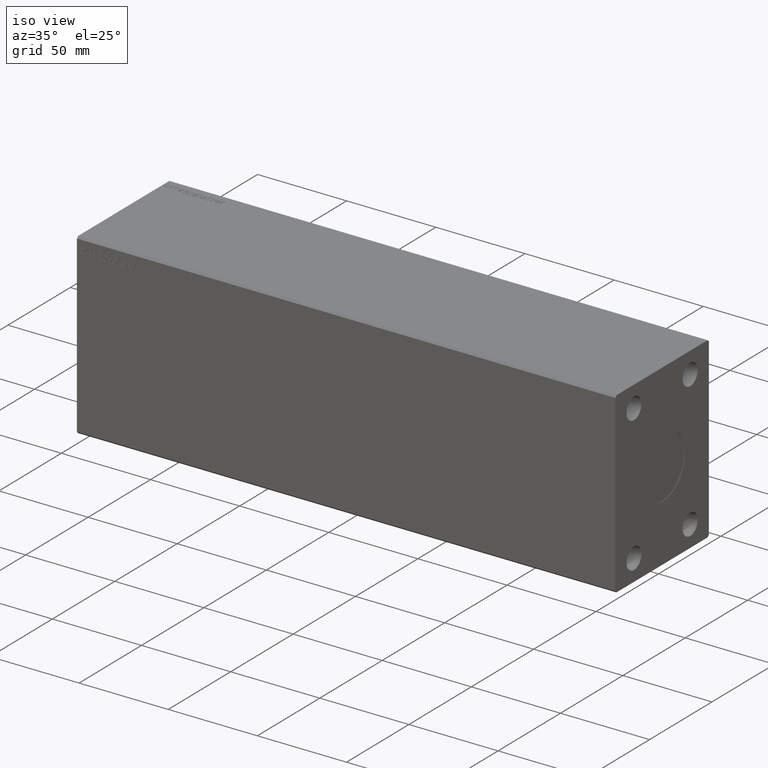
[diagram: clean part render]
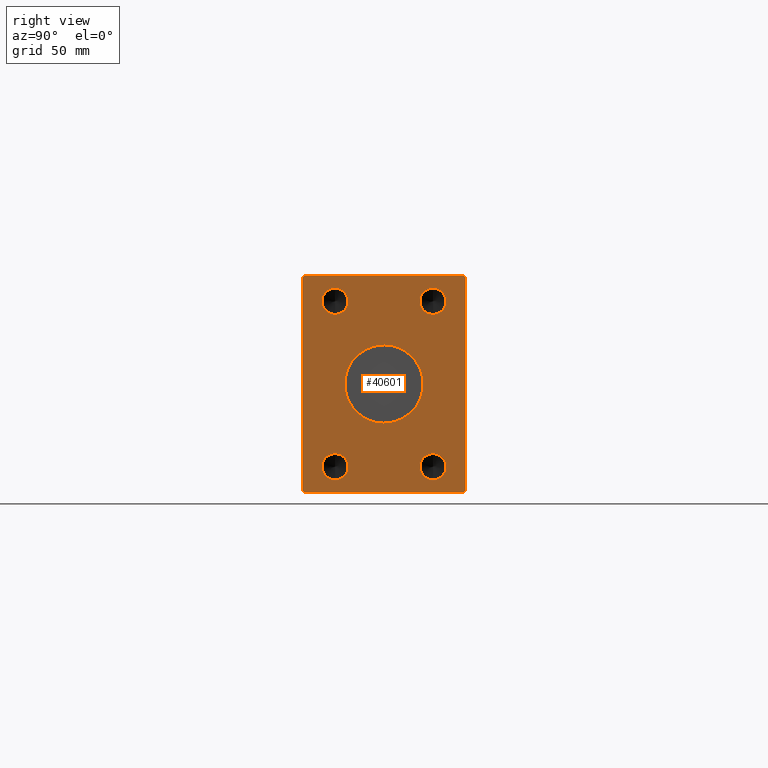
[diagram: tour spotlight — one face highlighted and labeled with its STEP entity id]
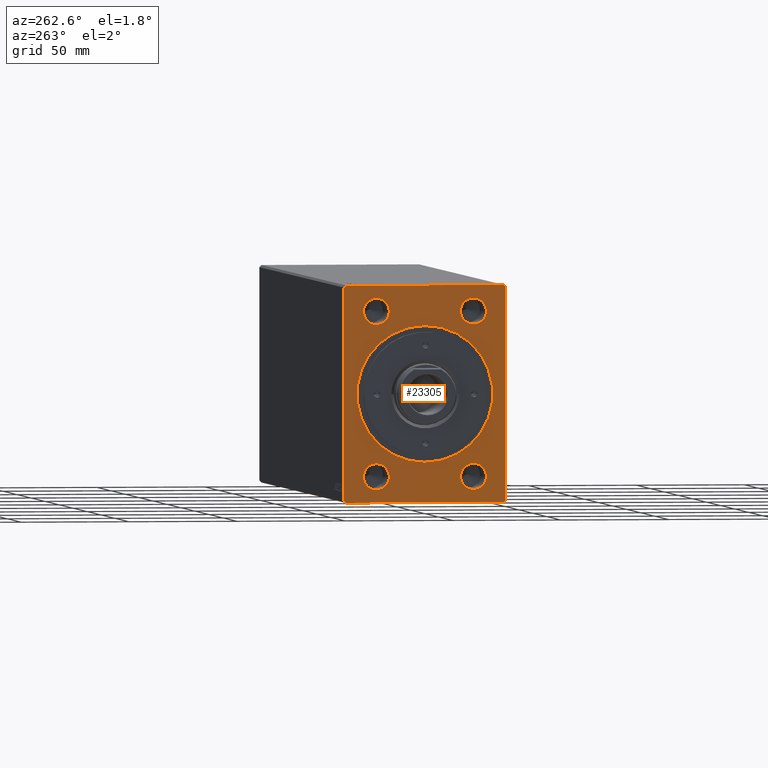
[diagram: tour spotlight — one face highlighted and labeled with its STEP entity id]
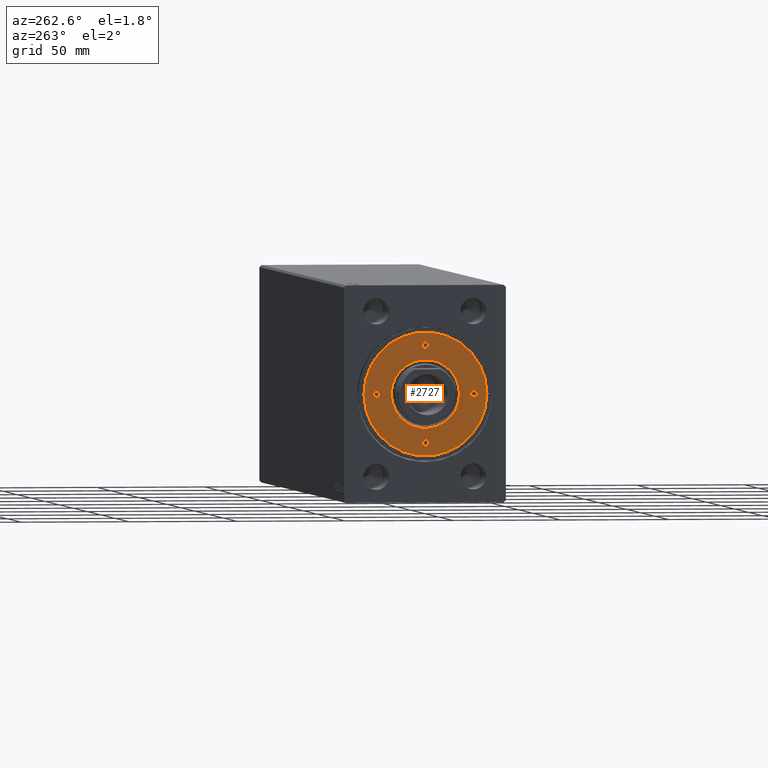
[diagram: tour spotlight — one face highlighted and labeled with its STEP entity id]
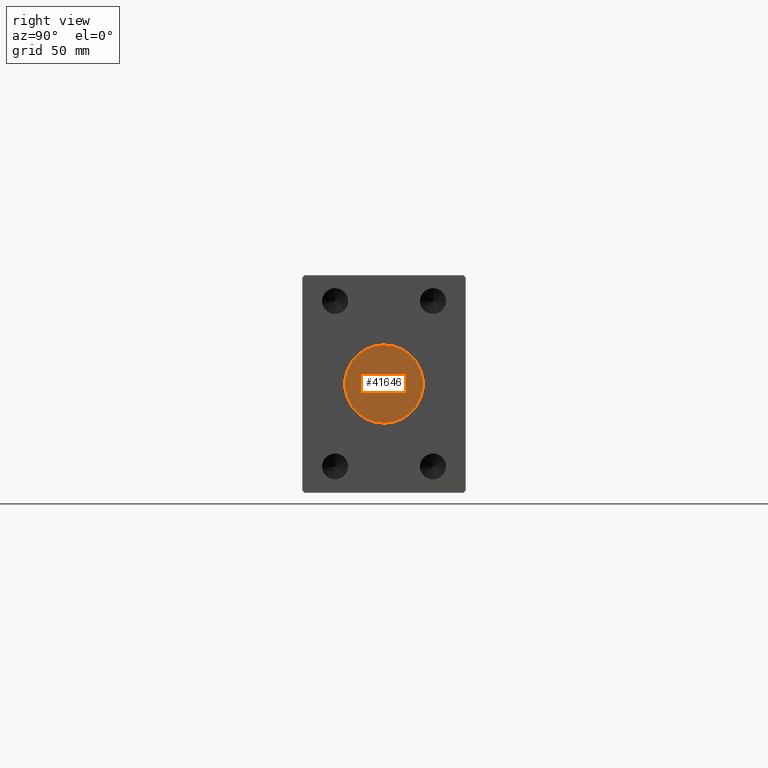
[diagram: tour spotlight — one face highlighted and labeled with its STEP entity id]
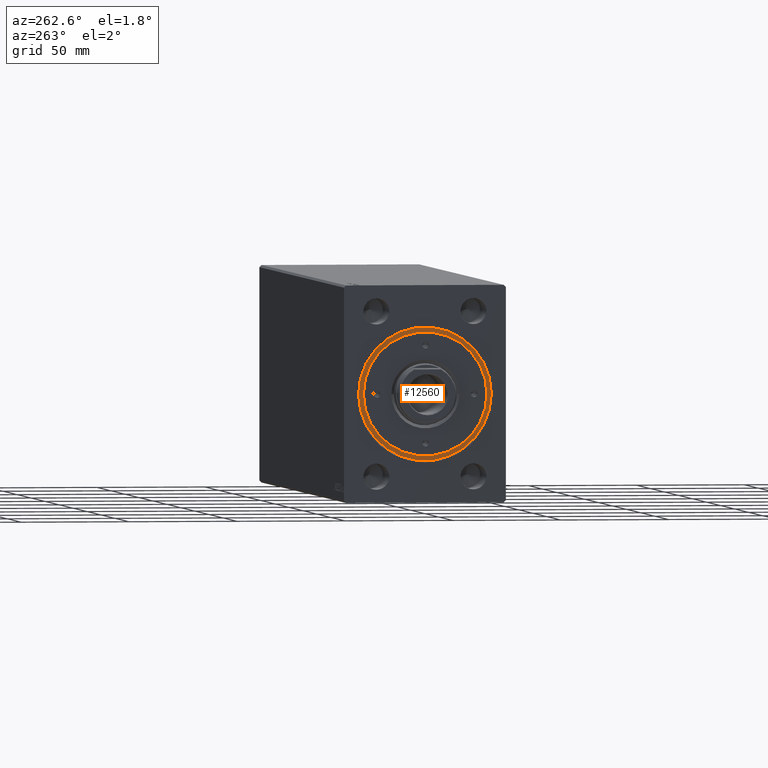
[diagram: tour spotlight — one face highlighted and labeled with its STEP entity id]
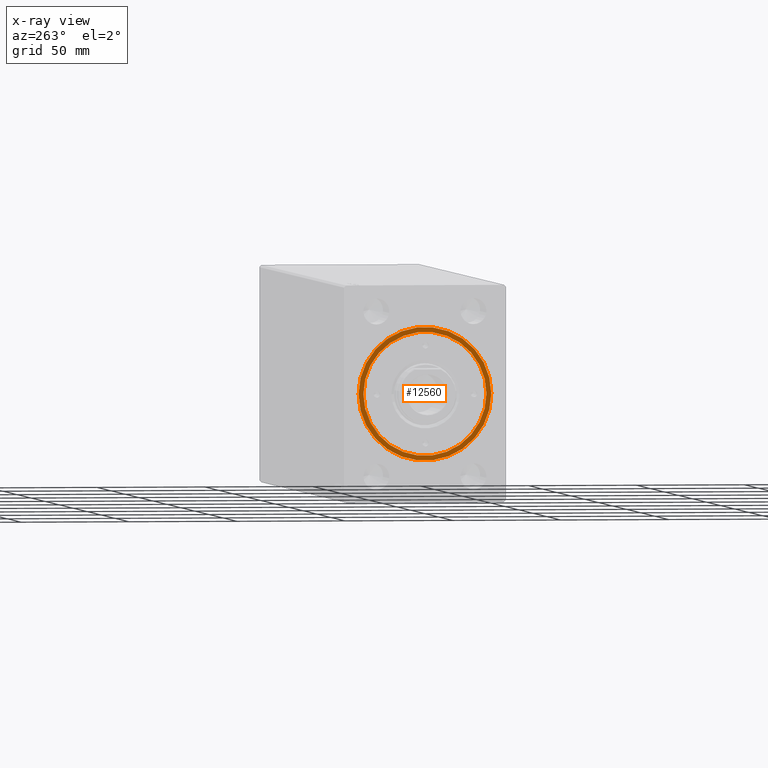
[diagram: x-ray of the same camera — body ghosted, this tour face saturated]
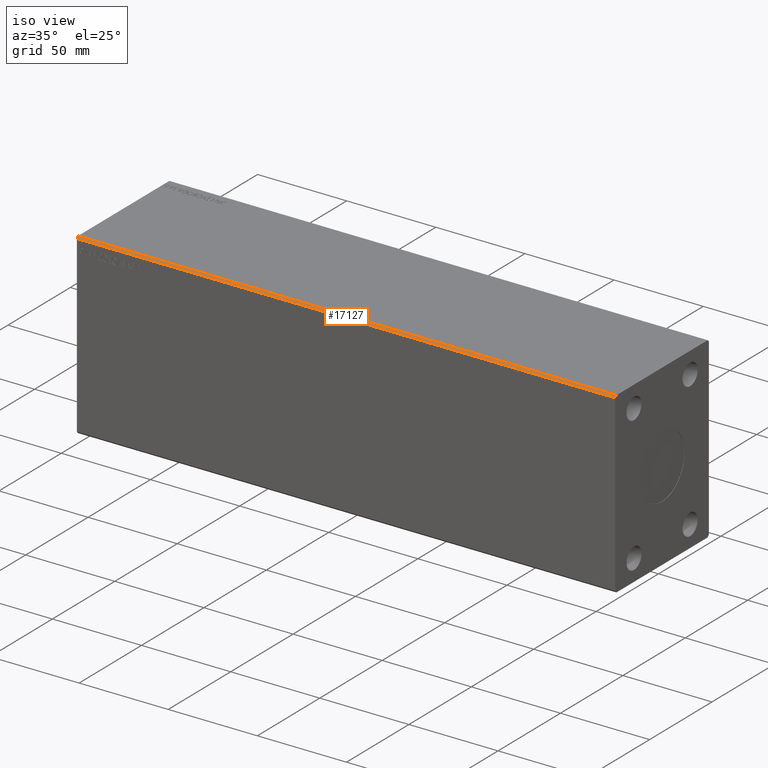
[diagram: tour spotlight — one face highlighted and labeled with its STEP entity id]
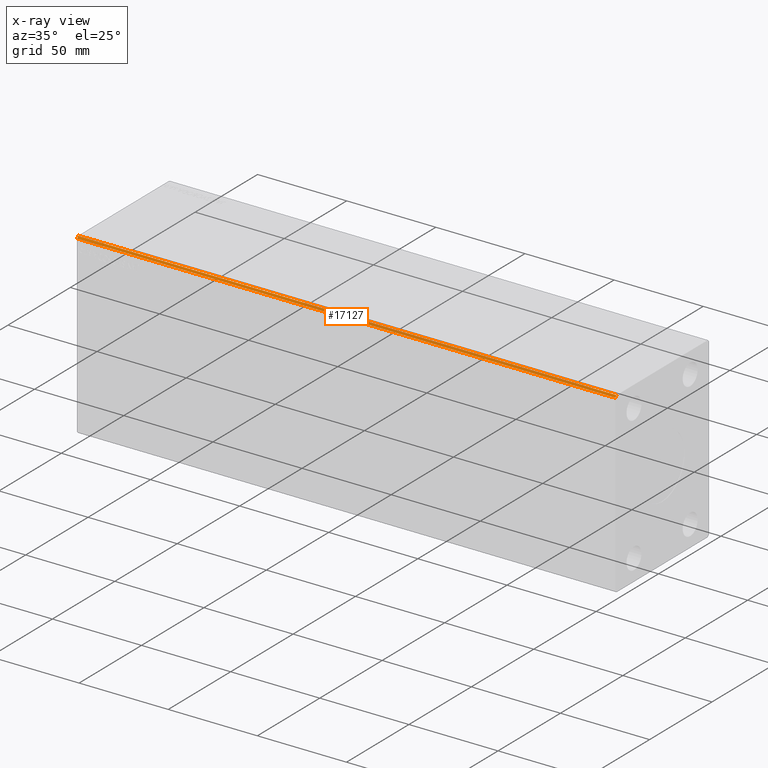
[diagram: x-ray of the same camera — body ghosted, this tour face saturated]
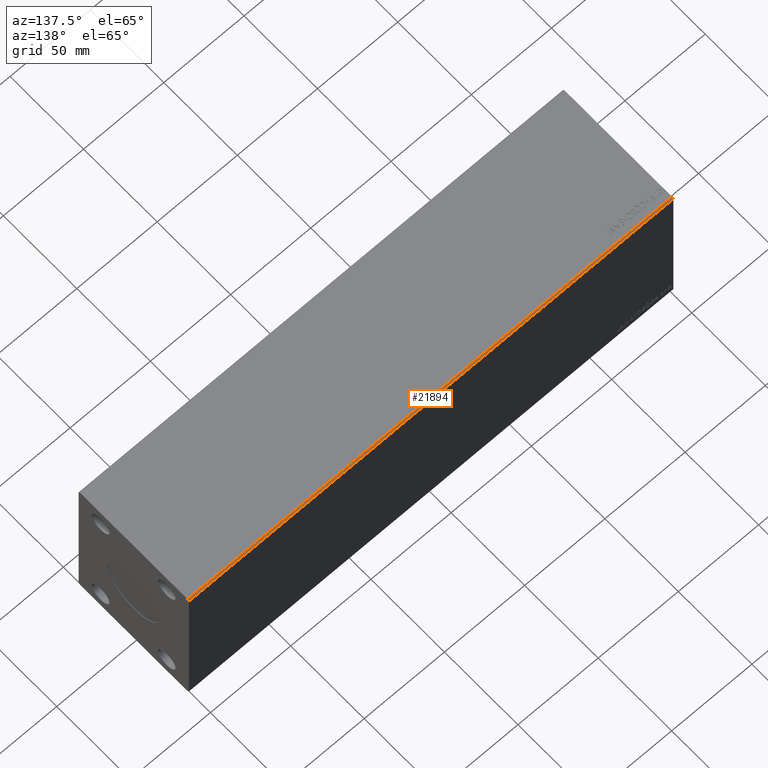
[diagram: tour spotlight — one face highlighted and labeled with its STEP entity id]
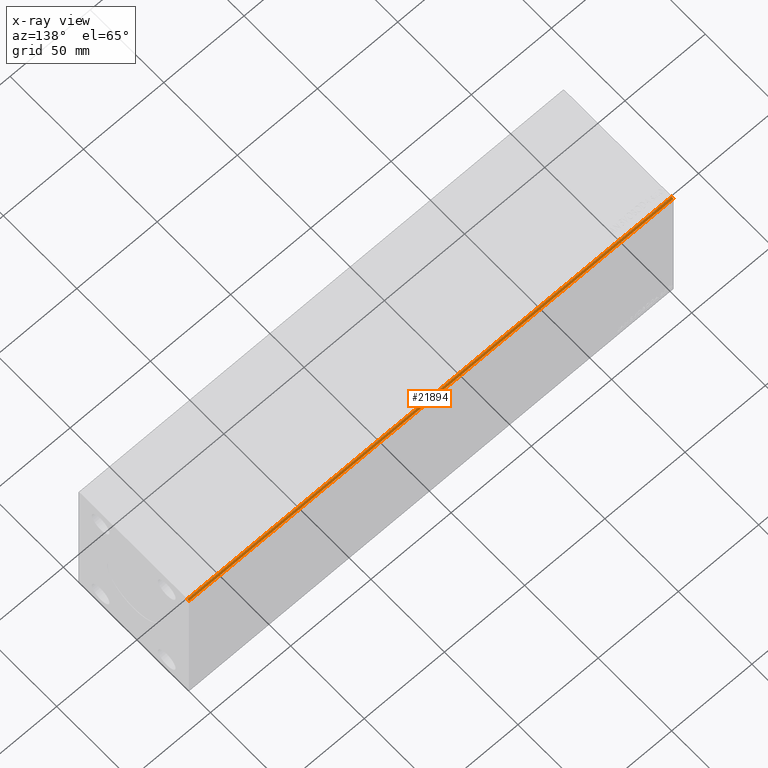
[diagram: x-ray of the same camera — body ghosted, this tour face saturated]
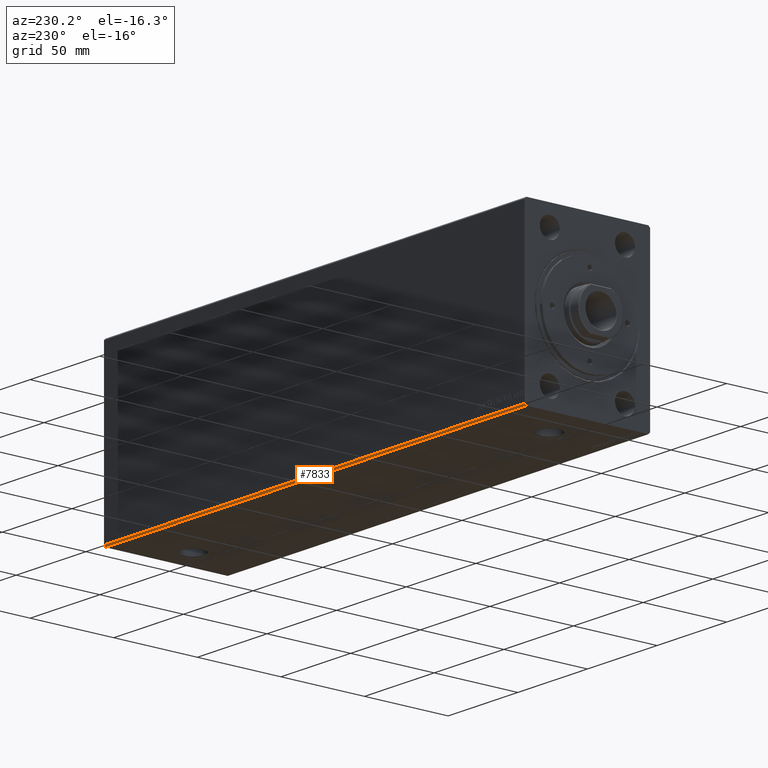
[diagram: tour spotlight — one face highlighted and labeled with its STEP entity id]
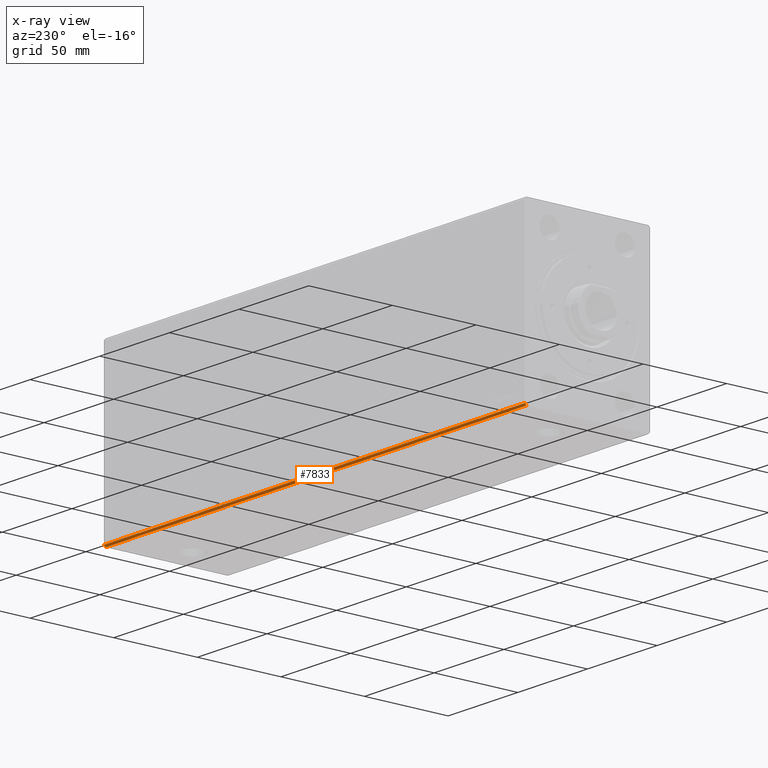
[diagram: x-ray of the same camera — body ghosted, this tour face saturated]
A machine part: a face-by-face anatomy tour. The part has 873 B-rep faces; the first image is the clean iso view, then the 8 largest visible faces are spotlighted one at a time (largest first), each with its STEP entity span.

Face 1 — right view, entity #40601. In plain terms, the highlighted planar face has unit normal (1, 0, 0).
Definition (entity closure, byte-faithful):
#1616 = EDGE_CURVE ( 'NONE', #20763, #26774, #3616, .T. ) ;
#2363 = LINE ( 'NONE', #23508, #28509 ) ;
#2417 = EDGE_CURVE ( 'NONE', #21875, #5386, #2536, .T. ) ;
#2536 = LINE ( 'NONE', #5433, #6433 ) ;
#2670 = VERTEX_POINT ( 'NONE', #9370 ) ;
#2769 = VERTEX_POINT ( 'NONE', #22463 ) ;
#3490 = DIRECTION ( 'NONE',  ( 0.000000000000000000, 0.000000000000000000, -1.000000000000000000 ) ) ;
#3590 = CARTESIAN_POINT ( 'NONE',  ( 302.0000000000000000, -37.50000000000001421, -49.00000000000000000 ) ) ;
#3616 = LINE ( 'NONE', #18060, #30617 ) ;
#5173 = EDGE_CURVE ( 'NONE', #21898, #42404, #35566, .T. ) ;
#5303 = CARTESIAN_POINT ( 'NONE',  ( 302.0000000000000000, 0.000000000000000000, 0.000000000000000000 ) ) ;
#5342 = DIRECTION ( 'NONE',  ( 0.000000000000000000, 0.000000000000000000, 1.000000000000000000 ) ) ;
#5386 = VERTEX_POINT ( 'NONE', #37227 ) ;
#5433 = CARTESIAN_POINT ( 'NONE',  ( 302.0000000000000000, 36.50000000000000711, -50.00000000000000000 ) ) ;
#5879 = EDGE_CURVE ( 'NONE', #42685, #17923, #42354, .T. ) ;
#6113 = EDGE_CURVE ( 'NONE', #27000, #14301, #43423, .T. ) ;
#6433 = VECTOR ( 'NONE', #19219, 1000.000000000000114 ) ;
#6668 = VERTEX_POINT ( 'NONE', #30977 ) ;
#6773 = ORIENTED_EDGE ( 'NONE', *, *, #2417, .T. ) ;
#7027 = CARTESIAN_POINT ( 'NONE',  ( 302.0000000000000000, -36.50000000000000711, -50.00000000000000000 ) ) ;
#7146 = ORIENTED_EDGE ( 'NONE', *, *, #18479, .T. ) ;
#7149 = EDGE_CURVE ( 'NONE', #2670, #20763, #2363, .T. ) ;
#7261 = ORIENTED_EDGE ( 'NONE', *, *, #5879, .T. ) ;
#7279 = EDGE_LOOP ( 'NONE', ( #13714, #42185, #42073, #7261, #21931, #22657, #6773, #7146 ) ) ;
#7343 = DIRECTION ( 'NONE',  ( 0.000000000000000000, 0.000000000000000000, -1.000000000000000000 ) ) ;
#8366 = FACE_BOUND ( 'NONE', #19979, .T. ) ;
#8505 = CARTESIAN_POINT ( 'NONE',  ( 302.0000000000000000, 22.50000000000000000, 38.00000000000000000 ) ) ;
#9034 = AXIS2_PLACEMENT_3D ( 'NONE', #16936, #38112, #30556 ) ;
#9082 = CARTESIAN_POINT ( 'NONE',  ( 302.0000000000000000, 22.50000000000000000, -44.00000000000000000 ) ) ;
#9370 = CARTESIAN_POINT ( 'NONE',  ( 302.0000000000000000, 37.50000000000000711, 49.00000000000000000 ) ) ;
#9994 = CARTESIAN_POINT ( 'NONE',  ( 302.0000000000000000, -37.50000000000001421, -49.00000000000000000 ) ) ;
#10049 = LINE ( 'NONE', #3590, #42694 ) ;
#10199 = EDGE_CURVE ( 'NONE', #27147, #6668, #35801, .T. ) ;
#10266 = DIRECTION ( 'NONE',  ( 0.000000000000000000, 0.7071067811865500152, -0.7071067811865451302 ) ) ;
#10665 = DIRECTION ( 'NONE',  ( 0.000000000000000000, 0.000000000000000000, -1.000000000000000000 ) ) ;
#11321 = LINE ( 'NONE', #21128, #43712 ) ;
#11392 = DIRECTION ( 'NONE',  ( 0.000000000000000000, -1.000000000000000000, -1.901066822988281457E-16 ) ) ;
#11410 = DIRECTION ( 'NONE',  ( 0.000000000000000000, 0.000000000000000000, -1.000000000000000000 ) ) ;
#11413 = CARTESIAN_POINT ( 'NONE',  ( 302.0000000000000000, 22.50000000000000000, -38.00000000000000000 ) ) ;
#11925 = FACE_BOUND ( 'NONE', #26157, .T. ) ;
#12114 = VECTOR ( 'NONE', #18924, 1000.000000000000000 ) ;
#12265 = EDGE_CURVE ( 'NONE', #43242, #21875, #12807, .T. ) ;
#12340 = DIRECTION ( 'NONE',  ( 1.000000000000000000, -0.000000000000000000, -0.000000000000000000 ) ) ;
#12597 = CIRCLE ( 'NONE', #9034, 18.00000000000000000 ) ;
#12734 = CARTESIAN_POINT ( 'NONE',  ( 302.0000000000000000, 22.50000000000000000, 44.00000000000000000 ) ) ;
#12807 = LINE ( 'NONE', #13458, #35128 ) ;
#13171 = CIRCLE ( 'NONE', #14579, 5.999999999999998224 ) ;
#13458 = CARTESIAN_POINT ( 'NONE',  ( 302.0000000000000000, -36.50000000000000711, -50.00000000000000000 ) ) ;
#13541 = AXIS2_PLACEMENT_3D ( 'NONE', #14135, #30213, #37318 ) ;
#13706 = ORIENTED_EDGE ( 'NONE', *, *, #33100, .F. ) ;
#13714 = ORIENTED_EDGE ( 'NONE', *, *, #7149, .T. ) ;
#13969 = CARTESIAN_POINT ( 'NONE',  ( 302.0000000000000000, 22.50000000000000000, -38.00000000000000000 ) ) ;
#14135 = CARTESIAN_POINT ( 'NONE',  ( 302.0000000000000000, -22.50000000000000000, 38.00000000000000000 ) ) ;
#14301 = VERTEX_POINT ( 'NONE', #30004 ) ;
#14442 = ORIENTED_EDGE ( 'NONE', *, *, #5173, .F. ) ;
#14579 = AXIS2_PLACEMENT_3D ( 'NONE', #8505, #42824, #11410 ) ;
#14612 = FACE_BOUND ( 'NONE', #29334, .T. ) ;
#15108 = CARTESIAN_POINT ( 'NONE',  ( 302.0000000000000000, 36.50000000000000711, -50.00000000000000000 ) ) ;
#15482 = EDGE_CURVE ( 'NONE', #2769, #29521, #13171, .T. ) ;
#16568 = EDGE_CURVE ( 'NONE', #33947, #41261, #38820, .T. ) ;
#16936 = CARTESIAN_POINT ( 'NONE',  ( 302.0000000000000000, 0.000000000000000000, 0.000000000000000000 ) ) ;
#17137 = CARTESIAN_POINT ( 'NONE',  ( 302.0000000000000000, -22.50000000000000000, 38.00000000000000000 ) ) ;
#17923 = VERTEX_POINT ( 'NONE', #9994 ) ;
#18060 = CARTESIAN_POINT ( 'NONE',  ( 302.0000000000000000, 36.50000000000000711, 50.00000000000000000 ) ) ;
#18479 = EDGE_CURVE ( 'NONE', #5386, #2670, #18916, .T. ) ;
#18527 = DIRECTION ( 'NONE',  ( 1.000000000000000000, -0.000000000000000000, -0.000000000000000000 ) ) ;
#18916 = LINE ( 'NONE', #29413, #21061 ) ;
#18924 = DIRECTION ( 'NONE',  ( 0.000000000000000000, 0.000000000000000000, -1.000000000000000000 ) ) ;
#19219 = DIRECTION ( 'NONE',  ( 0.000000000000000000, 0.7071067811865474617, 0.7071067811865474617 ) ) ;
#19399 = AXIS2_PLACEMENT_3D ( 'NONE', #17137, #30319, #7343 ) ;
#19495 = AXIS2_PLACEMENT_3D ( 'NONE', #23368, #34065, #10665 ) ;
#19694 = ORIENTED_EDGE ( 'NONE', *, *, #41636, .F. ) ;
#19979 = EDGE_LOOP ( 'NONE', ( #26241, #25355 ) ) ;
#20763 = VERTEX_POINT ( 'NONE', #34463 ) ;
#21061 = VECTOR ( 'NONE', #5342, 1000.000000000000000 ) ;
#21128 = CARTESIAN_POINT ( 'NONE',  ( 302.0000000000000000, -36.50000000000001421, 49.99999999999998579 ) ) ;
#21292 = CARTESIAN_POINT ( 'NONE',  ( 302.0000000000000000, 0.000000000000000000, 0.000000000000000000 ) ) ;
#21357 = CARTESIAN_POINT ( 'NONE',  ( 302.0000000000000000, 2.204364238465235428E-15, 18.00000000000000000 ) ) ;
#21875 = VERTEX_POINT ( 'NONE', #15108 ) ;
#21897 = CARTESIAN_POINT ( 'NONE',  ( 302.0000000000000000, -22.50000000000000000, -32.00000000000000711 ) ) ;
#21898 = VERTEX_POINT ( 'NONE', #9082 ) ;
#21931 = ORIENTED_EDGE ( 'NONE', *, *, #43551, .T. ) ;
#21948 = FACE_BOUND ( 'NONE', #24644, .T. ) ;
#22007 = DIRECTION ( 'NONE',  ( 1.000000000000000000, 0.000000000000000000, 0.000000000000000000 ) ) ;
#22170 = FACE_OUTER_BOUND ( 'NONE', #7279, .T. ) ;
#22463 = CARTESIAN_POINT ( 'NONE',  ( 302.0000000000000000, 22.50000000000000000, 32.00000000000000000 ) ) ;
#22583 = EDGE_CURVE ( 'NONE', #42404, #21898, #31138, .T. ) ;
#22657 = ORIENTED_EDGE ( 'NONE', *, *, #12265, .T. ) ;
#23368 = CARTESIAN_POINT ( 'NONE',  ( 302.0000000000000000, 22.50000000000000000, 38.00000000000000000 ) ) ;
#23469 = AXIS2_PLACEMENT_3D ( 'NONE', #21292, #34893, #34161 ) ;
#23508 = CARTESIAN_POINT ( 'NONE',  ( 302.0000000000000000, 37.50000000000000711, 49.00000000000000000 ) ) ;
#24430 = DIRECTION ( 'NONE',  ( 1.000000000000000000, -0.000000000000000000, -0.000000000000000000 ) ) ;
#24644 = EDGE_LOOP ( 'NONE', ( #31615, #19694 ) ) ;
#25133 = DIRECTION ( 'NONE',  ( 0.000000000000000000, 0.000000000000000000, -1.000000000000000000 ) ) ;
#25248 = EDGE_CURVE ( 'NONE', #41261, #33947, #37571, .T. ) ;
#25302 = FACE_BOUND ( 'NONE', #43984, .T. ) ;
#25355 = ORIENTED_EDGE ( 'NONE', *, *, #16568, .F. ) ;
#25446 = AXIS2_PLACEMENT_3D ( 'NONE', #34457, #27106, #3490 ) ;
#25706 = CARTESIAN_POINT ( 'NONE',  ( 302.0000000000000000, -37.50000000000001421, 48.99999999999998579 ) ) ;
#26157 = EDGE_LOOP ( 'NONE', ( #33735, #41976 ) ) ;
#26241 = ORIENTED_EDGE ( 'NONE', *, *, #25248, .F. ) ;
#26594 = DIRECTION ( 'NONE',  ( 0.000000000000000000, 0.000000000000000000, -1.000000000000000000 ) ) ;
#26774 = VERTEX_POINT ( 'NONE', #43019 ) ;
#27000 = VERTEX_POINT ( 'NONE', #21357 ) ;
#27106 = DIRECTION ( 'NONE',  ( 1.000000000000000000, -0.000000000000000000, -0.000000000000000000 ) ) ;
#27118 = CARTESIAN_POINT ( 'NONE',  ( 302.0000000000000000, -22.50000000000000000, -44.00000000000000711 ) ) ;
#27147 = VERTEX_POINT ( 'NONE', #43847 ) ;
#28041 = CIRCLE ( 'NONE', #19495, 5.999999999999998224 ) ;
#28509 = VECTOR ( 'NONE', #43576, 1000.000000000000114 ) ;
#29025 = AXIS2_PLACEMENT_3D ( 'NONE', #13969, #24430, #44067 ) ;
#29334 = EDGE_LOOP ( 'NONE', ( #14442, #32167 ) ) ;
#29413 = CARTESIAN_POINT ( 'NONE',  ( 302.0000000000000000, 37.50000000000000711, -49.00000000000000000 ) ) ;
#29521 = VERTEX_POINT ( 'NONE', #12734 ) ;
#30004 = CARTESIAN_POINT ( 'NONE',  ( 302.0000000000000000, 0.000000000000000000, -18.00000000000000000 ) ) ;
#30213 = DIRECTION ( 'NONE',  ( 1.000000000000000000, -0.000000000000000000, -0.000000000000000000 ) ) ;
#30316 = ORIENTED_EDGE ( 'NONE', *, *, #15482, .F. ) ;
#30319 = DIRECTION ( 'NONE',  ( 1.000000000000000000, -0.000000000000000000, -0.000000000000000000 ) ) ;
#30556 = DIRECTION ( 'NONE',  ( 0.000000000000000000, 0.000000000000000000, -1.000000000000000000 ) ) ;
#30612 = AXIS2_PLACEMENT_3D ( 'NONE', #11413, #18527, #32138 ) ;
#30617 = VECTOR ( 'NONE', #11392, 1000.000000000000000 ) ;
#30977 = CARTESIAN_POINT ( 'NONE',  ( 302.0000000000000000, -22.50000000000000000, 44.00000000000000000 ) ) ;
#31138 = CIRCLE ( 'NONE', #29025, 5.999999999999998224 ) ;
#31615 = ORIENTED_EDGE ( 'NONE', *, *, #10199, .F. ) ;
#32138 = DIRECTION ( 'NONE',  ( 0.000000000000000000, 0.000000000000000000, -1.000000000000000000 ) ) ;
#32167 = ORIENTED_EDGE ( 'NONE', *, *, #22583, .F. ) ;
#33100 = EDGE_CURVE ( 'NONE', #29521, #2769, #28041, .T. ) ;
#33329 = CARTESIAN_POINT ( 'NONE',  ( 302.0000000000000000, 22.50000000000000000, -32.00000000000000000 ) ) ;
#33735 = ORIENTED_EDGE ( 'NONE', *, *, #38256, .F. ) ;
#33947 = VERTEX_POINT ( 'NONE', #21897 ) ;
#34065 = DIRECTION ( 'NONE',  ( 1.000000000000000000, -0.000000000000000000, -0.000000000000000000 ) ) ;
#34124 = EDGE_CURVE ( 'NONE', #26774, #42685, #11321, .T. ) ;
#34161 = DIRECTION ( 'NONE',  ( 0.000000000000000000, 0.000000000000000000, -1.000000000000000000 ) ) ;
#34193 = DIRECTION ( 'NONE',  ( 0.000000000000000000, 1.000000000000000000, 0.000000000000000000 ) ) ;
#34457 = CARTESIAN_POINT ( 'NONE',  ( 302.0000000000000000, -22.50000000000000000, -38.00000000000000711 ) ) ;
#34463 = CARTESIAN_POINT ( 'NONE',  ( 302.0000000000000000, 36.50000000000000711, 50.00000000000000000 ) ) ;
#34893 = DIRECTION ( 'NONE',  ( 1.000000000000000000, 0.000000000000000000, 0.000000000000000000 ) ) ;
#35128 = VECTOR ( 'NONE', #34193, 1000.000000000000000 ) ;
#35566 = CIRCLE ( 'NONE', #30612, 5.999999999999998224 ) ;
#35772 = PLANE ( 'NONE',  #23469 ) ;
#35801 = CIRCLE ( 'NONE', #19399, 5.999999999999998224 ) ;
#36331 = CIRCLE ( 'NONE', #13541, 5.999999999999998224 ) ;
#37028 = AXIS2_PLACEMENT_3D ( 'NONE', #5303, #22007, #25133 ) ;
#37227 = CARTESIAN_POINT ( 'NONE',  ( 302.0000000000000000, 37.50000000000000711, -49.00000000000000000 ) ) ;
#37318 = DIRECTION ( 'NONE',  ( 0.000000000000000000, 0.000000000000000000, -1.000000000000000000 ) ) ;
#37571 = CIRCLE ( 'NONE', #25446, 5.999999999999998224 ) ;
#38112 = DIRECTION ( 'NONE',  ( 1.000000000000000000, 0.000000000000000000, 0.000000000000000000 ) ) ;
#38256 = EDGE_CURVE ( 'NONE', #14301, #27000, #12597, .T. ) ;
#38820 = CIRCLE ( 'NONE', #41686, 5.999999999999998224 ) ;
#39660 = CARTESIAN_POINT ( 'NONE',  ( 302.0000000000000000, -37.50000000000001421, 48.99999999999998579 ) ) ;
#40601 = ADVANCED_FACE ( 'NONE', ( #11925, #25302, #8366, #14612, #21948, #22170 ), #35772, .T. ) ;
#41261 = VERTEX_POINT ( 'NONE', #27118 ) ;
#41636 = EDGE_CURVE ( 'NONE', #6668, #27147, #36331, .T. ) ;
#41645 = DIRECTION ( 'NONE',  ( 0.000000000000000000, -0.7071067811865474617, -0.7071067811865474617 ) ) ;
#41686 = AXIS2_PLACEMENT_3D ( 'NONE', #42880, #12340, #26594 ) ;
#41976 = ORIENTED_EDGE ( 'NONE', *, *, #6113, .F. ) ;
#42073 = ORIENTED_EDGE ( 'NONE', *, *, #34124, .T. ) ;
#42185 = ORIENTED_EDGE ( 'NONE', *, *, #1616, .T. ) ;
#42354 = LINE ( 'NONE', #39660, #12114 ) ;
#42404 = VERTEX_POINT ( 'NONE', #33329 ) ;
#42685 = VERTEX_POINT ( 'NONE', #25706 ) ;
#42694 = VECTOR ( 'NONE', #10266, 1000.000000000000114 ) ;
#42824 = DIRECTION ( 'NONE',  ( 1.000000000000000000, -0.000000000000000000, -0.000000000000000000 ) ) ;
#42880 = CARTESIAN_POINT ( 'NONE',  ( 302.0000000000000000, -22.50000000000000000, -38.00000000000000711 ) ) ;
#43019 = CARTESIAN_POINT ( 'NONE',  ( 302.0000000000000000, -36.50000000000001421, 49.99999999999998579 ) ) ;
#43242 = VERTEX_POINT ( 'NONE', #7027 ) ;
#43423 = CIRCLE ( 'NONE', #37028, 18.00000000000000000 ) ;
#43551 = EDGE_CURVE ( 'NONE', #17923, #43242, #10049, .T. ) ;
#43576 = DIRECTION ( 'NONE',  ( 0.000000000000000000, -0.7071067811865474617, 0.7071067811865474617 ) ) ;
#43712 = VECTOR ( 'NONE', #41645, 1000.000000000000114 ) ;
#43847 = CARTESIAN_POINT ( 'NONE',  ( 302.0000000000000000, -22.50000000000000000, 32.00000000000000000 ) ) ;
#43984 = EDGE_LOOP ( 'NONE', ( #30316, #13706 ) ) ;
#44067 = DIRECTION ( 'NONE',  ( 0.000000000000000000, 0.000000000000000000, -1.000000000000000000 ) ) ;

Face 2 — auxiliary view, entity #23305. In plain terms, the highlighted planar face has unit normal (1, 0, 0).
Definition (entity closure, byte-faithful):
#199 = VERTEX_POINT ( 'NONE', #25373 ) ;
#334 = CARTESIAN_POINT ( 'NONE',  ( 0.000000000000000000, -37.50000000000001421, -49.00000000000000000 ) ) ;
#544 = DIRECTION ( 'NONE',  ( 0.000000000000000000, 1.000000000000000000, 0.000000000000000000 ) ) ;
#742 = PLANE ( 'NONE',  #17651 ) ;
#1141 = LINE ( 'NONE', #28095, #9707 ) ;
#1154 = ORIENTED_EDGE ( 'NONE', *, *, #3823, .F. ) ;
#1242 = VERTEX_POINT ( 'NONE', #35780 ) ;
#1814 = EDGE_CURVE ( 'NONE', #18539, #24835, #36937, .T. ) ;
#2240 = CARTESIAN_POINT ( 'NONE',  ( 2.449293598294703949E-16, -22.50000000000000000, -44.00000000000000711 ) ) ;
#2839 = ORIENTED_EDGE ( 'NONE', *, *, #34664, .T. ) ;
#2857 = CARTESIAN_POINT ( 'NONE',  ( 2.449293598294703949E-16, -22.50000000000000000, 38.00000000000000000 ) ) ;
#3129 = CIRCLE ( 'NONE', #21626, 5.999999999999998224 ) ;
#3504 = VECTOR ( 'NONE', #37658, 1000.000000000000114 ) ;
#3823 = EDGE_CURVE ( 'NONE', #25629, #30714, #16702, .T. ) ;
#4366 = LINE ( 'NONE', #28428, #39139 ) ;
#4720 = DIRECTION ( 'NONE',  ( 1.000000000000000000, 0.000000000000000000, 0.000000000000000000 ) ) ;
#5972 = DIRECTION ( 'NONE',  ( -1.000000000000000000, -0.000000000000000000, -0.000000000000000000 ) ) ;
#6084 = DIRECTION ( 'NONE',  ( -1.000000000000000000, -0.000000000000000000, -0.000000000000000000 ) ) ;
#6614 = ORIENTED_EDGE ( 'NONE', *, *, #41844, .F. ) ;
#6624 = CARTESIAN_POINT ( 'NONE',  ( 2.449293598294703949E-16, -22.50000000000000000, 32.00000000000000000 ) ) ;
#6850 = CARTESIAN_POINT ( 'NONE',  ( 0.000000000000000000, 37.50000000000000711, 49.00000000000000000 ) ) ;
#6907 = CIRCLE ( 'NONE', #30394, 5.999999999999998224 ) ;
#7142 = EDGE_CURVE ( 'NONE', #34392, #25629, #32658, .T. ) ;
#7824 = VECTOR ( 'NONE', #23991, 1000.000000000000114 ) ;
#8198 = VERTEX_POINT ( 'NONE', #19950 ) ;
#8344 = CIRCLE ( 'NONE', #38945, 5.999999999999998224 ) ;
#8404 = LINE ( 'NONE', #11304, #26146 ) ;
#8498 = ORIENTED_EDGE ( 'NONE', *, *, #35109, .F. ) ;
#8737 = ORIENTED_EDGE ( 'NONE', *, *, #7142, .F. ) ;
#9194 = CARTESIAN_POINT ( 'NONE',  ( 0.000000000000000000, 0.000000000000000000, 0.000000000000000000 ) ) ;
#9472 = DIRECTION ( 'NONE',  ( 0.000000000000000000, -0.7071067811865474617, -0.7071067811865474617 ) ) ;
#9707 = VECTOR ( 'NONE', #35432, 1000.000000000000114 ) ;
#11062 = CARTESIAN_POINT ( 'NONE',  ( 0.000000000000000000, -37.50000000000001421, 48.99999999999998579 ) ) ;
#11304 = CARTESIAN_POINT ( 'NONE',  ( 0.000000000000000000, 37.50000000000000711, -49.00000000000000000 ) ) ;
#12094 = DIRECTION ( 'NONE',  ( 1.000000000000000000, 0.000000000000000000, 0.000000000000000000 ) ) ;
#12122 = CIRCLE ( 'NONE', #40599, 5.999999999999998224 ) ;
#12128 = DIRECTION ( 'NONE',  ( -1.000000000000000000, -0.000000000000000000, -0.000000000000000000 ) ) ;
#12222 = DIRECTION ( 'NONE',  ( 0.000000000000000000, 0.000000000000000000, 1.000000000000000000 ) ) ;
#12515 = CARTESIAN_POINT ( 'NONE',  ( 2.449293598294703949E-16, 22.50000000000000000, 32.00000000000000000 ) ) ;
#13033 = CARTESIAN_POINT ( 'NONE',  ( 0.000000000000000000, -36.50000000000001421, 49.99999999999998579 ) ) ;
#13166 = DIRECTION ( 'NONE',  ( 0.000000000000000000, 0.000000000000000000, 1.000000000000000000 ) ) ;
#13382 = CARTESIAN_POINT ( 'NONE',  ( 2.449293598294703949E-16, 22.50000000000000000, 38.00000000000000000 ) ) ;
#13443 = CIRCLE ( 'NONE', #29121, 31.45000000000000639 ) ;
#13728 = CARTESIAN_POINT ( 'NONE',  ( 2.449293598294703949E-16, -22.50000000000000000, -32.00000000000000711 ) ) ;
#13801 = CARTESIAN_POINT ( 'NONE',  ( 0.000000000000000000, -37.50000000000001421, -49.00000000000000000 ) ) ;
#13881 = EDGE_LOOP ( 'NONE', ( #25385, #24570 ) ) ;
#14244 = VERTEX_POINT ( 'NONE', #15941 ) ;
#14484 = CARTESIAN_POINT ( 'NONE',  ( 2.449293598294703949E-16, 22.50000000000000000, 44.00000000000000000 ) ) ;
#14540 = CIRCLE ( 'NONE', #27366, 31.45000000000000639 ) ;
#14739 = FACE_BOUND ( 'NONE', #43764, .T. ) ;
#15629 = EDGE_LOOP ( 'NONE', ( #41742, #33039 ) ) ;
#15941 = CARTESIAN_POINT ( 'NONE',  ( 2.449293598294703949E-16, 22.50000000000000000, -44.00000000000000000 ) ) ;
#15964 = VECTOR ( 'NONE', #9472, 1000.000000000000114 ) ;
#16066 = DIRECTION ( 'NONE',  ( 0.000000000000000000, 0.000000000000000000, 1.000000000000000000 ) ) ;
#16097 = DIRECTION ( 'NONE',  ( 0.000000000000000000, 0.000000000000000000, 1.000000000000000000 ) ) ;
#16204 = DIRECTION ( 'NONE',  ( 0.000000000000000000, 0.000000000000000000, 1.000000000000000000 ) ) ;
#16500 = DIRECTION ( 'NONE',  ( -1.000000000000000000, -0.000000000000000000, -0.000000000000000000 ) ) ;
#16702 = LINE ( 'NONE', #13801, #3504 ) ;
#16747 = VERTEX_POINT ( 'NONE', #14484 ) ;
#16949 = DIRECTION ( 'NONE',  ( 1.000000000000000000, 0.000000000000000000, 0.000000000000000000 ) ) ;
#17369 = EDGE_CURVE ( 'NONE', #30714, #20689, #34388, .T. ) ;
#17641 = FACE_OUTER_BOUND ( 'NONE', #27228, .T. ) ;
#17651 = AXIS2_PLACEMENT_3D ( 'NONE', #28350, #4720, #41284 ) ;
#17919 = CARTESIAN_POINT ( 'NONE',  ( 0.000000000000000000, -36.50000000000000711, -50.00000000000000000 ) ) ;
#18539 = VERTEX_POINT ( 'NONE', #36752 ) ;
#18585 = CARTESIAN_POINT ( 'NONE',  ( 2.449293598294703949E-16, -22.50000000000000000, 38.00000000000000000 ) ) ;
#19527 = EDGE_CURVE ( 'NONE', #20689, #36049, #1141, .T. ) ;
#19720 = AXIS2_PLACEMENT_3D ( 'NONE', #42062, #28916, #35142 ) ;
#19950 = CARTESIAN_POINT ( 'NONE',  ( 0.000000000000000000, -36.50000000000001421, 49.99999999999998579 ) ) ;
#20224 = CIRCLE ( 'NONE', #30942, 5.999999999999998224 ) ;
#20446 = CIRCLE ( 'NONE', #19720, 5.999999999999998224 ) ;
#20689 = VERTEX_POINT ( 'NONE', #43606 ) ;
#21028 = VECTOR ( 'NONE', #544, 1000.000000000000000 ) ;
#21458 = ORIENTED_EDGE ( 'NONE', *, *, #24966, .T. ) ;
#21626 = AXIS2_PLACEMENT_3D ( 'NONE', #18585, #12128, #22374 ) ;
#21643 = FACE_BOUND ( 'NONE', #13881, .T. ) ;
#22374 = DIRECTION ( 'NONE',  ( 0.000000000000000000, 0.000000000000000000, 1.000000000000000000 ) ) ;
#22406 = DIRECTION ( 'NONE',  ( 0.000000000000000000, 0.000000000000000000, -1.000000000000000000 ) ) ;
#22560 = EDGE_CURVE ( 'NONE', #35896, #36435, #8344, .T. ) ;
#22570 = CARTESIAN_POINT ( 'NONE',  ( 2.449293598294703949E-16, -22.50000000000000000, 44.00000000000000000 ) ) ;
#23305 = ADVANCED_FACE ( 'NONE', ( #14739, #38587, #21643, #32127, #38810, #17641 ), #742, .F. ) ;
#23991 = DIRECTION ( 'NONE',  ( 0.000000000000000000, -0.7071067811865474617, 0.7071067811865474617 ) ) ;
#24570 = ORIENTED_EDGE ( 'NONE', *, *, #31891, .F. ) ;
#24585 = ORIENTED_EDGE ( 'NONE', *, *, #38615, .F. ) ;
#24835 = VERTEX_POINT ( 'NONE', #35265 ) ;
#24887 = DIRECTION ( 'NONE',  ( 0.000000000000000000, 0.000000000000000000, 1.000000000000000000 ) ) ;
#24947 = VERTEX_POINT ( 'NONE', #40147 ) ;
#24966 = EDGE_CURVE ( 'NONE', #24947, #199, #13443, .T. ) ;
#25373 = CARTESIAN_POINT ( 'NONE',  ( 0.000000000000000000, 0.000000000000000000, 31.45000000000000639 ) ) ;
#25385 = ORIENTED_EDGE ( 'NONE', *, *, #37681, .F. ) ;
#25629 = VERTEX_POINT ( 'NONE', #334 ) ;
#25886 = AXIS2_PLACEMENT_3D ( 'NONE', #13382, #41024, #13166 ) ;
#26008 = CARTESIAN_POINT ( 'NONE',  ( 2.449293598294703949E-16, -22.50000000000000000, -38.00000000000000711 ) ) ;
#26146 = VECTOR ( 'NONE', #24887, 1000.000000000000000 ) ;
#26590 = AXIS2_PLACEMENT_3D ( 'NONE', #39479, #16500, #16066 ) ;
#26769 = ORIENTED_EDGE ( 'NONE', *, *, #19527, .F. ) ;
#26991 = DIRECTION ( 'NONE',  ( 0.000000000000000000, 0.000000000000000000, -1.000000000000000000 ) ) ;
#27228 = EDGE_LOOP ( 'NONE', ( #43704, #24585, #26769, #37029, #1154, #8737, #8498, #41878 ) ) ;
#27366 = AXIS2_PLACEMENT_3D ( 'NONE', #9194, #12094, #42634 ) ;
#27924 = CARTESIAN_POINT ( 'NONE',  ( 0.000000000000000000, -36.50000000000000711, -50.00000000000000000 ) ) ;
#28095 = CARTESIAN_POINT ( 'NONE',  ( 0.000000000000000000, 36.50000000000000711, -50.00000000000000000 ) ) ;
#28225 = EDGE_LOOP ( 'NONE', ( #2839, #21458 ) ) ;
#28350 = CARTESIAN_POINT ( 'NONE',  ( 0.000000000000000000, 0.000000000000000000, 0.000000000000000000 ) ) ;
#28428 = CARTESIAN_POINT ( 'NONE',  ( 0.000000000000000000, 36.50000000000000711, 50.00000000000000000 ) ) ;
#28662 = CARTESIAN_POINT ( 'NONE',  ( 0.000000000000000000, 37.50000000000000711, -49.00000000000000000 ) ) ;
#28730 = DIRECTION ( 'NONE',  ( -1.000000000000000000, -0.000000000000000000, -0.000000000000000000 ) ) ;
#28916 = DIRECTION ( 'NONE',  ( -1.000000000000000000, -0.000000000000000000, -0.000000000000000000 ) ) ;
#29121 = AXIS2_PLACEMENT_3D ( 'NONE', #40370, #16949, #26991 ) ;
#29869 = VERTEX_POINT ( 'NONE', #2240 ) ;
#30394 = AXIS2_PLACEMENT_3D ( 'NONE', #39410, #28730, #12222 ) ;
#30649 = VECTOR ( 'NONE', #22406, 1000.000000000000000 ) ;
#30714 = VERTEX_POINT ( 'NONE', #17919 ) ;
#30942 = AXIS2_PLACEMENT_3D ( 'NONE', #26008, #39608, #43171 ) ;
#31241 = ORIENTED_EDGE ( 'NONE', *, *, #34256, .F. ) ;
#31891 = EDGE_CURVE ( 'NONE', #14244, #1242, #43781, .T. ) ;
#32044 = EDGE_CURVE ( 'NONE', #39073, #16747, #32290, .T. ) ;
#32127 = FACE_BOUND ( 'NONE', #15629, .T. ) ;
#32290 = CIRCLE ( 'NONE', #25886, 5.999999999999998224 ) ;
#32447 = EDGE_CURVE ( 'NONE', #36435, #35896, #3129, .T. ) ;
#32658 = LINE ( 'NONE', #39351, #30649 ) ;
#33039 = ORIENTED_EDGE ( 'NONE', *, *, #22560, .F. ) ;
#34256 = EDGE_CURVE ( 'NONE', #29869, #34321, #20224, .T. ) ;
#34321 = VERTEX_POINT ( 'NONE', #13728 ) ;
#34388 = LINE ( 'NONE', #27924, #21028 ) ;
#34392 = VERTEX_POINT ( 'NONE', #11062 ) ;
#34664 = EDGE_CURVE ( 'NONE', #199, #24947, #14540, .T. ) ;
#35109 = EDGE_CURVE ( 'NONE', #8198, #34392, #43351, .T. ) ;
#35142 = DIRECTION ( 'NONE',  ( 0.000000000000000000, 0.000000000000000000, 1.000000000000000000 ) ) ;
#35261 = EDGE_LOOP ( 'NONE', ( #6614, #31241 ) ) ;
#35265 = CARTESIAN_POINT ( 'NONE',  ( 0.000000000000000000, 36.50000000000000711, 50.00000000000000000 ) ) ;
#35432 = DIRECTION ( 'NONE',  ( 0.000000000000000000, 0.7071067811865474617, 0.7071067811865474617 ) ) ;
#35780 = CARTESIAN_POINT ( 'NONE',  ( 2.449293598294703949E-16, 22.50000000000000000, -32.00000000000000000 ) ) ;
#35896 = VERTEX_POINT ( 'NONE', #6624 ) ;
#36049 = VERTEX_POINT ( 'NONE', #28662 ) ;
#36435 = VERTEX_POINT ( 'NONE', #22570 ) ;
#36752 = CARTESIAN_POINT ( 'NONE',  ( 0.000000000000000000, 37.50000000000000711, 49.00000000000000000 ) ) ;
#36937 = LINE ( 'NONE', #6850, #7824 ) ;
#37029 = ORIENTED_EDGE ( 'NONE', *, *, #17369, .F. ) ;
#37658 = DIRECTION ( 'NONE',  ( 0.000000000000000000, 0.7071067811865500152, -0.7071067811865451302 ) ) ;
#37681 = EDGE_CURVE ( 'NONE', #1242, #14244, #6907, .T. ) ;
#38573 = EDGE_CURVE ( 'NONE', #16747, #39073, #20446, .T. ) ;
#38587 = FACE_BOUND ( 'NONE', #35261, .T. ) ;
#38615 = EDGE_CURVE ( 'NONE', #36049, #18539, #8404, .T. ) ;
#38810 = FACE_BOUND ( 'NONE', #28225, .T. ) ;
#38945 = AXIS2_PLACEMENT_3D ( 'NONE', #2857, #5972, #16204 ) ;
#39073 = VERTEX_POINT ( 'NONE', #12515 ) ;
#39110 = DIRECTION ( 'NONE',  ( 0.000000000000000000, -1.000000000000000000, -1.901066822988281457E-16 ) ) ;
#39139 = VECTOR ( 'NONE', #39110, 1000.000000000000000 ) ;
#39351 = CARTESIAN_POINT ( 'NONE',  ( 0.000000000000000000, -37.50000000000001421, 48.99999999999998579 ) ) ;
#39410 = CARTESIAN_POINT ( 'NONE',  ( 2.449293598294703949E-16, 22.50000000000000000, -38.00000000000000000 ) ) ;
#39479 = CARTESIAN_POINT ( 'NONE',  ( 2.449293598294703949E-16, 22.50000000000000000, -38.00000000000000000 ) ) ;
#39608 = DIRECTION ( 'NONE',  ( -1.000000000000000000, -0.000000000000000000, -0.000000000000000000 ) ) ;
#39715 = ORIENTED_EDGE ( 'NONE', *, *, #32044, .F. ) ;
#39882 = EDGE_CURVE ( 'NONE', #24835, #8198, #4366, .T. ) ;
#40147 = CARTESIAN_POINT ( 'NONE',  ( 0.000000000000000000, 3.851514183318426405E-15, -31.45000000000000639 ) ) ;
#40370 = CARTESIAN_POINT ( 'NONE',  ( 0.000000000000000000, 0.000000000000000000, 0.000000000000000000 ) ) ;
#40599 = AXIS2_PLACEMENT_3D ( 'NONE', #42641, #6084, #16097 ) ;
#41024 = DIRECTION ( 'NONE',  ( -1.000000000000000000, -0.000000000000000000, -0.000000000000000000 ) ) ;
#41284 = DIRECTION ( 'NONE',  ( 0.000000000000000000, 0.000000000000000000, -1.000000000000000000 ) ) ;
#41742 = ORIENTED_EDGE ( 'NONE', *, *, #32447, .F. ) ;
#41844 = EDGE_CURVE ( 'NONE', #34321, #29869, #12122, .T. ) ;
#41878 = ORIENTED_EDGE ( 'NONE', *, *, #39882, .F. ) ;
#42062 = CARTESIAN_POINT ( 'NONE',  ( 2.449293598294703949E-16, 22.50000000000000000, 38.00000000000000000 ) ) ;
#42634 = DIRECTION ( 'NONE',  ( 0.000000000000000000, 0.000000000000000000, -1.000000000000000000 ) ) ;
#42641 = CARTESIAN_POINT ( 'NONE',  ( 2.449293598294703949E-16, -22.50000000000000000, -38.00000000000000711 ) ) ;
#43171 = DIRECTION ( 'NONE',  ( 0.000000000000000000, 0.000000000000000000, 1.000000000000000000 ) ) ;
#43326 = ORIENTED_EDGE ( 'NONE', *, *, #38573, .F. ) ;
#43351 = LINE ( 'NONE', #13033, #15964 ) ;
#43606 = CARTESIAN_POINT ( 'NONE',  ( 0.000000000000000000, 36.50000000000000711, -50.00000000000000000 ) ) ;
#43704 = ORIENTED_EDGE ( 'NONE', *, *, #1814, .F. ) ;
#43764 = EDGE_LOOP ( 'NONE', ( #43326, #39715 ) ) ;
#43781 = CIRCLE ( 'NONE', #26590, 5.999999999999998224 ) ;

Face 3 — auxiliary view, entity #2727. In plain terms, the highlighted planar face has unit normal (-1, 0, 0).
Definition (entity closure, byte-faithful):
#224 = DIRECTION ( 'NONE',  ( -0.000000000000000000, -0.000000000000000000, 1.000000000000000000 ) ) ;
#561 = ORIENTED_EDGE ( 'NONE', *, *, #32693, .T. ) ;
#816 = CARTESIAN_POINT ( 'NONE',  ( 0.000000000000000000, 22.50000000000000000, 83.79999999999999716 ) ) ;
#1988 = FACE_BOUND ( 'NONE', #17403, .T. ) ;
#2538 = CIRCLE ( 'NONE', #41655, 1.499999999999996891 ) ;
#2727 = ADVANCED_FACE ( 'NONE', ( #22679, #1988, #12437, #42100, #39407, #42762 ), #12219, .T. ) ;
#2866 = VERTEX_POINT ( 'NONE', #26916 ) ;
#3233 = AXIS2_PLACEMENT_3D ( 'NONE', #37951, #37290, #31278 ) ;
#3658 = CARTESIAN_POINT ( 'NONE',  ( -15.79999999999997407, 1.934941942652814473E-15, 83.79999999999999716 ) ) ;
#3988 = ORIENTED_EDGE ( 'NONE', *, *, #39637, .F. ) ;
#4010 = EDGE_CURVE ( 'NONE', #2866, #9665, #44093, .T. ) ;
#4296 = CIRCLE ( 'NONE', #42723, 15.79999999999997407 ) ;
#4430 = CARTESIAN_POINT ( 'NONE',  ( 22.50000000000000000, 0.000000000000000000, 83.79999999999999716 ) ) ;
#4641 = ORIENTED_EDGE ( 'NONE', *, *, #7938, .T. ) ;
#5118 = DIRECTION ( 'NONE',  ( 1.000000000000000000, 0.000000000000000000, 0.000000000000000000 ) ) ;
#5297 = VERTEX_POINT ( 'NONE', #9601 ) ;
#5691 = EDGE_CURVE ( 'NONE', #20188, #29084, #4296, .T. ) ;
#6758 = ORIENTED_EDGE ( 'NONE', *, *, #4010, .F. ) ;
#7938 = EDGE_CURVE ( 'NONE', #26990, #5297, #33502, .T. ) ;
#8167 = DIRECTION ( 'NONE',  ( -0.000000000000000000, -0.000000000000000000, -1.000000000000000000 ) ) ;
#8296 = DIRECTION ( 'NONE',  ( -0.000000000000000000, -0.000000000000000000, 1.000000000000000000 ) ) ;
#8840 = DIRECTION ( 'NONE',  ( -0.000000000000000000, -0.000000000000000000, 1.000000000000000000 ) ) ;
#9287 = CARTESIAN_POINT ( 'NONE',  ( 0.000000000000000000, -22.50000000000000000, 83.79999999999999716 ) ) ;
#9601 = CARTESIAN_POINT ( 'NONE',  ( -28.50000000000000000, 0.000000000000000000, 83.79999999999999716 ) ) ;
#9665 = VERTEX_POINT ( 'NONE', #28166 ) ;
#10678 = ORIENTED_EDGE ( 'NONE', *, *, #21551, .F. ) ;
#11196 = CIRCLE ( 'NONE', #25597, 1.499999999999996891 ) ;
#11558 = CARTESIAN_POINT ( 'NONE',  ( 0.000000000000000000, 0.000000000000000000, 83.79999999999999716 ) ) ;
#11782 = DIRECTION ( 'NONE',  ( 1.000000000000000000, 0.000000000000000000, -0.000000000000000000 ) ) ;
#12219 = PLANE ( 'NONE',  #15679 ) ;
#12296 = CARTESIAN_POINT ( 'NONE',  ( 21.00000000000000000, 1.836970198721027222E-16, 83.79999999999999716 ) ) ;
#12437 = FACE_BOUND ( 'NONE', #14158, .T. ) ;
#12782 = AXIS2_PLACEMENT_3D ( 'NONE', #9287, #8840, #22871 ) ;
#12805 = ORIENTED_EDGE ( 'NONE', *, *, #30001, .F. ) ;
#13048 = ORIENTED_EDGE ( 'NONE', *, *, #38891, .F. ) ;
#13127 = ORIENTED_EDGE ( 'NONE', *, *, #26247, .F. ) ;
#13784 = DIRECTION ( 'NONE',  ( 1.000000000000000000, 0.000000000000000000, 0.000000000000000000 ) ) ;
#14158 = EDGE_LOOP ( 'NONE', ( #12805, #13127 ) ) ;
#14186 = AXIS2_PLACEMENT_3D ( 'NONE', #19505, #36233, #22854 ) ;
#14443 = ORIENTED_EDGE ( 'NONE', *, *, #42393, .T. ) ;
#14639 = EDGE_LOOP ( 'NONE', ( #14443, #14651 ) ) ;
#14651 = ORIENTED_EDGE ( 'NONE', *, *, #5691, .T. ) ;
#14942 = CARTESIAN_POINT ( 'NONE',  ( 0.000000000000000000, -22.50000000000000000, 83.79999999999999716 ) ) ;
#15269 = EDGE_LOOP ( 'NONE', ( #10678, #3988 ) ) ;
#15627 = CARTESIAN_POINT ( 'NONE',  ( 0.000000000000000000, 22.50000000000000000, 83.79999999999999716 ) ) ;
#15679 = AXIS2_PLACEMENT_3D ( 'NONE', #11558, #18237, #11782 ) ;
#15706 = AXIS2_PLACEMENT_3D ( 'NONE', #22189, #8167, #35791 ) ;
#16523 = EDGE_CURVE ( 'NONE', #28311, #28736, #2538, .T. ) ;
#17403 = EDGE_LOOP ( 'NONE', ( #39104, #13048 ) ) ;
#17646 = AXIS2_PLACEMENT_3D ( 'NONE', #4430, #224, #13784 ) ;
#17924 = DIRECTION ( 'NONE',  ( 1.000000000000000000, 0.000000000000000000, 0.000000000000000000 ) ) ;
#18237 = DIRECTION ( 'NONE',  ( 0.000000000000000000, 0.000000000000000000, 1.000000000000000000 ) ) ;
#18755 = CIRCLE ( 'NONE', #43685, 1.499999999999997780 ) ;
#19369 = VERTEX_POINT ( 'NONE', #36154 ) ;
#19505 = CARTESIAN_POINT ( 'NONE',  ( -22.50000000000000000, 0.000000000000000000, 83.79999999999999716 ) ) ;
#20047 = CARTESIAN_POINT ( 'NONE',  ( 0.000000000000000000, 0.000000000000000000, 83.79999999999999716 ) ) ;
#20188 = VERTEX_POINT ( 'NONE', #3658 ) ;
#20242 = DIRECTION ( 'NONE',  ( 1.000000000000000000, 0.000000000000000000, 0.000000000000000000 ) ) ;
#20525 = DIRECTION ( 'NONE',  ( 1.000000000000000000, 0.000000000000000000, 0.000000000000000000 ) ) ;
#20691 = CARTESIAN_POINT ( 'NONE',  ( 22.50000000000000000, 0.000000000000000000, 83.79999999999999716 ) ) ;
#21286 = ORIENTED_EDGE ( 'NONE', *, *, #27712, .F. ) ;
#21551 = EDGE_CURVE ( 'NONE', #19369, #43156, #28966, .T. ) ;
#22026 = CARTESIAN_POINT ( 'NONE',  ( -1.499999999999996891, -22.50000000000000000, 83.79999999999999716 ) ) ;
#22041 = DIRECTION ( 'NONE',  ( -0.000000000000000000, -0.000000000000000000, 1.000000000000000000 ) ) ;
#22189 = CARTESIAN_POINT ( 'NONE',  ( 0.000000000000000000, 0.000000000000000000, 83.79999999999999716 ) ) ;
#22278 = EDGE_LOOP ( 'NONE', ( #6758, #21286 ) ) ;
#22382 = VERTEX_POINT ( 'NONE', #28714 ) ;
#22391 = AXIS2_PLACEMENT_3D ( 'NONE', #20691, #44103, #20242 ) ;
#22425 = CIRCLE ( 'NONE', #3233, 28.50000000000000000 ) ;
#22679 = FACE_BOUND ( 'NONE', #22278, .T. ) ;
#22854 = DIRECTION ( 'NONE',  ( 1.000000000000000000, 0.000000000000000000, 0.000000000000000000 ) ) ;
#22871 = DIRECTION ( 'NONE',  ( 1.000000000000000000, 0.000000000000000000, 0.000000000000000000 ) ) ;
#23642 = CARTESIAN_POINT ( 'NONE',  ( -1.499999999999996891, 22.50000000000000000, 83.79999999999999716 ) ) ;
#24233 = AXIS2_PLACEMENT_3D ( 'NONE', #20047, #37214, #30332 ) ;
#25193 = DIRECTION ( 'NONE',  ( -0.000000000000000000, -0.000000000000000000, 1.000000000000000000 ) ) ;
#25597 = AXIS2_PLACEMENT_3D ( 'NONE', #15627, #8296, #31919 ) ;
#26247 = EDGE_CURVE ( 'NONE', #29528, #22382, #31194, .T. ) ;
#26916 = CARTESIAN_POINT ( 'NONE',  ( -21.00000000000000000, 0.000000000000000000, 83.79999999999999716 ) ) ;
#26990 = VERTEX_POINT ( 'NONE', #38523 ) ;
#26997 = CARTESIAN_POINT ( 'NONE',  ( 0.000000000000000000, 0.000000000000000000, 83.79999999999999716 ) ) ;
#27712 = EDGE_CURVE ( 'NONE', #9665, #2866, #18755, .T. ) ;
#27989 = CARTESIAN_POINT ( 'NONE',  ( 15.79999999999997407, 0.000000000000000000, 83.79999999999999716 ) ) ;
#28166 = CARTESIAN_POINT ( 'NONE',  ( -23.99999999999999645, 1.836970198721027222E-16, 83.79999999999999716 ) ) ;
#28311 = VERTEX_POINT ( 'NONE', #32848 ) ;
#28714 = CARTESIAN_POINT ( 'NONE',  ( 23.99999999999999645, 0.000000000000000000, 83.79999999999999716 ) ) ;
#28736 = VERTEX_POINT ( 'NONE', #23642 ) ;
#28966 = CIRCLE ( 'NONE', #41782, 1.499999999999996891 ) ;
#29084 = VERTEX_POINT ( 'NONE', #27989 ) ;
#29528 = VERTEX_POINT ( 'NONE', #12296 ) ;
#29960 = CIRCLE ( 'NONE', #15706, 15.79999999999997407 ) ;
#30001 = EDGE_CURVE ( 'NONE', #22382, #29528, #41625, .T. ) ;
#30332 = DIRECTION ( 'NONE',  ( 1.000000000000000000, 0.000000000000000000, 0.000000000000000000 ) ) ;
#30618 = CIRCLE ( 'NONE', #12782, 1.499999999999996891 ) ;
#31194 = CIRCLE ( 'NONE', #17646, 1.499999999999997780 ) ;
#31278 = DIRECTION ( 'NONE',  ( 1.000000000000000000, 0.000000000000000000, 0.000000000000000000 ) ) ;
#31919 = DIRECTION ( 'NONE',  ( 1.000000000000000000, 0.000000000000000000, 0.000000000000000000 ) ) ;
#32193 = DIRECTION ( 'NONE',  ( -0.000000000000000000, -0.000000000000000000, 1.000000000000000000 ) ) ;
#32693 = EDGE_CURVE ( 'NONE', #5297, #26990, #22425, .T. ) ;
#32848 = CARTESIAN_POINT ( 'NONE',  ( 1.499999999999996891, 22.50000000000000000, 83.79999999999999716 ) ) ;
#33502 = CIRCLE ( 'NONE', #24233, 28.50000000000000000 ) ;
#35791 = DIRECTION ( 'NONE',  ( 1.000000000000000000, 0.000000000000000000, 0.000000000000000000 ) ) ;
#36154 = CARTESIAN_POINT ( 'NONE',  ( 1.499999999999996891, -22.50000000000000000, 83.79999999999999716 ) ) ;
#36233 = DIRECTION ( 'NONE',  ( -0.000000000000000000, -0.000000000000000000, 1.000000000000000000 ) ) ;
#36983 = EDGE_LOOP ( 'NONE', ( #561, #4641 ) ) ;
#37214 = DIRECTION ( 'NONE',  ( 0.000000000000000000, 0.000000000000000000, 1.000000000000000000 ) ) ;
#37290 = DIRECTION ( 'NONE',  ( 0.000000000000000000, 0.000000000000000000, 1.000000000000000000 ) ) ;
#37951 = CARTESIAN_POINT ( 'NONE',  ( 0.000000000000000000, 0.000000000000000000, 83.79999999999999716 ) ) ;
#38523 = CARTESIAN_POINT ( 'NONE',  ( 28.50000000000000000, 3.490243377569956456E-15, 83.79999999999999716 ) ) ;
#38795 = DIRECTION ( 'NONE',  ( 1.000000000000000000, 0.000000000000000000, 0.000000000000000000 ) ) ;
#38891 = EDGE_CURVE ( 'NONE', #28736, #28311, #11196, .T. ) ;
#39104 = ORIENTED_EDGE ( 'NONE', *, *, #16523, .F. ) ;
#39407 = FACE_BOUND ( 'NONE', #14639, .T. ) ;
#39637 = EDGE_CURVE ( 'NONE', #43156, #19369, #30618, .T. ) ;
#41625 = CIRCLE ( 'NONE', #22391, 1.499999999999997780 ) ;
#41655 = AXIS2_PLACEMENT_3D ( 'NONE', #816, #32193, #17924 ) ;
#41782 = AXIS2_PLACEMENT_3D ( 'NONE', #14942, #25193, #38795 ) ;
#42100 = FACE_BOUND ( 'NONE', #15269, .T. ) ;
#42337 = CARTESIAN_POINT ( 'NONE',  ( -22.50000000000000000, 0.000000000000000000, 83.79999999999999716 ) ) ;
#42393 = EDGE_CURVE ( 'NONE', #29084, #20188, #29960, .T. ) ;
#42723 = AXIS2_PLACEMENT_3D ( 'NONE', #26997, #43279, #20525 ) ;
#42762 = FACE_OUTER_BOUND ( 'NONE', #36983, .T. ) ;
#43156 = VERTEX_POINT ( 'NONE', #22026 ) ;
#43279 = DIRECTION ( 'NONE',  ( -0.000000000000000000, -0.000000000000000000, -1.000000000000000000 ) ) ;
#43685 = AXIS2_PLACEMENT_3D ( 'NONE', #42337, #22041, #5118 ) ;
#44093 = CIRCLE ( 'NONE', #14186, 1.499999999999997780 ) ;
#44103 = DIRECTION ( 'NONE',  ( -0.000000000000000000, -0.000000000000000000, 1.000000000000000000 ) ) ;

Face 4 — right view, entity #41646. In plain terms, the highlighted planar face has unit normal (1, 0, 0).
Definition (entity closure, byte-faithful):
#256 = CIRCLE ( 'NONE', #25130, 18.00000000000000000 ) ;
#10550 = ORIENTED_EDGE ( 'NONE', *, *, #11402, .T. ) ;
#10796 = DIRECTION ( 'NONE',  ( 0.000000000000000000, 0.000000000000000000, -1.000000000000000000 ) ) ;
#11270 = VERTEX_POINT ( 'NONE', #27128 ) ;
#11402 = EDGE_CURVE ( 'NONE', #36098, #11270, #256, .T. ) ;
#16806 = PLANE ( 'NONE',  #24932 ) ;
#17248 = CARTESIAN_POINT ( 'NONE',  ( 301.8000000000000114, 0.000000000000000000, 0.000000000000000000 ) ) ;
#17405 = DIRECTION ( 'NONE',  ( 0.000000000000000000, 0.000000000000000000, -1.000000000000000000 ) ) ;
#21557 = EDGE_CURVE ( 'NONE', #11270, #36098, #37478, .T. ) ;
#21852 = CARTESIAN_POINT ( 'NONE',  ( 301.8000000000000114, 0.000000000000000000, 0.000000000000000000 ) ) ;
#22630 = DIRECTION ( 'NONE',  ( 1.000000000000000000, 0.000000000000000000, 0.000000000000000000 ) ) ;
#24932 = AXIS2_PLACEMENT_3D ( 'NONE', #17248, #27066, #10796 ) ;
#25130 = AXIS2_PLACEMENT_3D ( 'NONE', #25758, #22630, #39576 ) ;
#25758 = CARTESIAN_POINT ( 'NONE',  ( 301.8000000000000114, 0.000000000000000000, 0.000000000000000000 ) ) ;
#27066 = DIRECTION ( 'NONE',  ( 1.000000000000000000, 0.000000000000000000, 0.000000000000000000 ) ) ;
#27128 = CARTESIAN_POINT ( 'NONE',  ( 301.8000000000000114, 0.000000000000000000, -18.00000000000000000 ) ) ;
#29050 = ORIENTED_EDGE ( 'NONE', *, *, #21557, .T. ) ;
#30399 = AXIS2_PLACEMENT_3D ( 'NONE', #21852, #35450, #17405 ) ;
#33322 = CARTESIAN_POINT ( 'NONE',  ( 301.8000000000000114, 2.204364238465235428E-15, 18.00000000000000000 ) ) ;
#34887 = EDGE_LOOP ( 'NONE', ( #29050, #10550 ) ) ;
#35450 = DIRECTION ( 'NONE',  ( 1.000000000000000000, 0.000000000000000000, 0.000000000000000000 ) ) ;
#36098 = VERTEX_POINT ( 'NONE', #33322 ) ;
#37478 = CIRCLE ( 'NONE', #30399, 18.00000000000000000 ) ;
#39576 = DIRECTION ( 'NONE',  ( 0.000000000000000000, 0.000000000000000000, -1.000000000000000000 ) ) ;
#41332 = FACE_OUTER_BOUND ( 'NONE', #34887, .T. ) ;
#41646 = ADVANCED_FACE ( 'NONE', ( #41332 ), #16806, .T. ) ;

Face 5 — auxiliary view, entity #12560. An x-ray twin of the same camera follows (body ghosted, this face saturated) — the face is partly hidden behind the body. In plain terms, the highlighted planar face has unit normal (-1, 0, 0).
Definition (entity closure, byte-faithful):
#432 = ORIENTED_EDGE ( 'NONE', *, *, #13318, .T. ) ;
#670 = CARTESIAN_POINT ( 'NONE',  ( 0.000000000000000000, 0.000000000000000000, 82.00000000000000000 ) ) ;
#952 = DIRECTION ( 'NONE',  ( 0.000000000000000000, 0.000000000000000000, 1.000000000000000000 ) ) ;
#3480 = ORIENTED_EDGE ( 'NONE', *, *, #35767, .F. ) ;
#3701 = EDGE_CURVE ( 'NONE', #6974, #12742, #17738, .T. ) ;
#4000 = DIRECTION ( 'NONE',  ( 1.000000000000000000, 0.000000000000000000, 0.000000000000000000 ) ) ;
#6659 = AXIS2_PLACEMENT_3D ( 'NONE', #26566, #26791, #40168 ) ;
#6974 = VERTEX_POINT ( 'NONE', #9524 ) ;
#8927 = CARTESIAN_POINT ( 'NONE',  ( 0.000000000000000000, 0.000000000000000000, 82.00000000000000000 ) ) ;
#9524 = CARTESIAN_POINT ( 'NONE',  ( 28.50000000000000000, 3.490243377569956456E-15, 82.00000000000000000 ) ) ;
#9843 = EDGE_CURVE ( 'NONE', #18618, #35282, #31523, .T. ) ;
#12283 = AXIS2_PLACEMENT_3D ( 'NONE', #36596, #33261, #26123 ) ;
#12560 = ADVANCED_FACE ( 'NONE', ( #19427, #43514 ), #33921, .T. ) ;
#12742 = VERTEX_POINT ( 'NONE', #31897 ) ;
#13318 = EDGE_CURVE ( 'NONE', #35282, #18618, #25895, .T. ) ;
#14545 = AXIS2_PLACEMENT_3D ( 'NONE', #31474, #952, #37932 ) ;
#16809 = CARTESIAN_POINT ( 'NONE',  ( -30.75000000000000355, 0.000000000000000000, 82.00000000000000000 ) ) ;
#17738 = CIRCLE ( 'NONE', #26267, 28.50000000000000000 ) ;
#18618 = VERTEX_POINT ( 'NONE', #24023 ) ;
#19427 = FACE_BOUND ( 'NONE', #26294, .T. ) ;
#20471 = ORIENTED_EDGE ( 'NONE', *, *, #3701, .F. ) ;
#24023 = CARTESIAN_POINT ( 'NONE',  ( 30.75000000000000355, 3.765788907378111328E-15, 82.00000000000000000 ) ) ;
#24265 = DIRECTION ( 'NONE',  ( 0.000000000000000000, 0.000000000000000000, 1.000000000000000000 ) ) ;
#25895 = CIRCLE ( 'NONE', #14545, 30.75000000000000355 ) ;
#26078 = DIRECTION ( 'NONE',  ( 1.000000000000000000, 0.000000000000000000, 0.000000000000000000 ) ) ;
#26123 = DIRECTION ( 'NONE',  ( 1.000000000000000000, 0.000000000000000000, 0.000000000000000000 ) ) ;
#26267 = AXIS2_PLACEMENT_3D ( 'NONE', #8927, #39679, #26078 ) ;
#26294 = EDGE_LOOP ( 'NONE', ( #3480, #20471 ) ) ;
#26407 = EDGE_LOOP ( 'NONE', ( #432, #41911 ) ) ;
#26566 = CARTESIAN_POINT ( 'NONE',  ( 0.000000000000000000, 0.000000000000000000, 82.00000000000000000 ) ) ;
#26791 = DIRECTION ( 'NONE',  ( 0.000000000000000000, 0.000000000000000000, 1.000000000000000000 ) ) ;
#31474 = CARTESIAN_POINT ( 'NONE',  ( 0.000000000000000000, 0.000000000000000000, 82.00000000000000000 ) ) ;
#31523 = CIRCLE ( 'NONE', #12283, 30.75000000000000355 ) ;
#31897 = CARTESIAN_POINT ( 'NONE',  ( -28.50000000000000000, 0.000000000000000000, 82.00000000000000000 ) ) ;
#33261 = DIRECTION ( 'NONE',  ( 0.000000000000000000, 0.000000000000000000, 1.000000000000000000 ) ) ;
#33921 = PLANE ( 'NONE',  #6659 ) ;
#34527 = CIRCLE ( 'NONE', #37353, 28.50000000000000000 ) ;
#35282 = VERTEX_POINT ( 'NONE', #16809 ) ;
#35767 = EDGE_CURVE ( 'NONE', #12742, #6974, #34527, .T. ) ;
#36596 = CARTESIAN_POINT ( 'NONE',  ( 0.000000000000000000, 0.000000000000000000, 82.00000000000000000 ) ) ;
#37353 = AXIS2_PLACEMENT_3D ( 'NONE', #670, #24265, #4000 ) ;
#37932 = DIRECTION ( 'NONE',  ( 1.000000000000000000, 0.000000000000000000, 0.000000000000000000 ) ) ;
#39679 = DIRECTION ( 'NONE',  ( 0.000000000000000000, 0.000000000000000000, 1.000000000000000000 ) ) ;
#40168 = DIRECTION ( 'NONE',  ( 1.000000000000000000, 0.000000000000000000, -0.000000000000000000 ) ) ;
#41911 = ORIENTED_EDGE ( 'NONE', *, *, #9843, .T. ) ;
#43514 = FACE_OUTER_BOUND ( 'NONE', #26407, .T. ) ;

Face 6 — iso view, entity #17127. An x-ray twin of the same camera follows (body ghosted, this face saturated) — the face is partly hidden behind the body. In plain terms, the highlighted planar face has unit normal (0, 0.7071, -0.7071).
Definition (entity closure, byte-faithful):
#327 = ORIENTED_EDGE ( 'NONE', *, *, #34124, .F. ) ;
#1123 = ORIENTED_EDGE ( 'NONE', *, *, #7644, .T. ) ;
#7644 = EDGE_CURVE ( 'NONE', #26774, #8198, #14305, .T. ) ;
#8198 = VERTEX_POINT ( 'NONE', #19950 ) ;
#9210 = LINE ( 'NONE', #29948, #42763 ) ;
#9472 = DIRECTION ( 'NONE',  ( 0.000000000000000000, -0.7071067811865474617, -0.7071067811865474617 ) ) ;
#11062 = CARTESIAN_POINT ( 'NONE',  ( 0.000000000000000000, -37.50000000000001421, 48.99999999999998579 ) ) ;
#11321 = LINE ( 'NONE', #21128, #43712 ) ;
#12563 = DIRECTION ( 'NONE',  ( 0.000000000000000000, 0.7071067811865474617, 0.7071067811865474617 ) ) ;
#13033 = CARTESIAN_POINT ( 'NONE',  ( 0.000000000000000000, -36.50000000000001421, 49.99999999999998579 ) ) ;
#14305 = LINE ( 'NONE', #33707, #27807 ) ;
#14770 = ORIENTED_EDGE ( 'NONE', *, *, #42655, .F. ) ;
#15964 = VECTOR ( 'NONE', #9472, 1000.000000000000114 ) ;
#17127 = ADVANCED_FACE ( 'NONE', ( #39536 ), #22589, .F. ) ;
#19950 = CARTESIAN_POINT ( 'NONE',  ( 0.000000000000000000, -36.50000000000001421, 49.99999999999998579 ) ) ;
#21128 = CARTESIAN_POINT ( 'NONE',  ( 302.0000000000000000, -36.50000000000001421, 49.99999999999998579 ) ) ;
#22589 = PLANE ( 'NONE',  #28139 ) ;
#23671 = DIRECTION ( 'NONE',  ( -1.000000000000000000, -0.000000000000000000, -0.000000000000000000 ) ) ;
#25706 = CARTESIAN_POINT ( 'NONE',  ( 302.0000000000000000, -37.50000000000001421, 48.99999999999998579 ) ) ;
#26774 = VERTEX_POINT ( 'NONE', #43019 ) ;
#27807 = VECTOR ( 'NONE', #23671, 1000.000000000000000 ) ;
#28139 = AXIS2_PLACEMENT_3D ( 'NONE', #43098, #32843, #12563 ) ;
#29948 = CARTESIAN_POINT ( 'NONE',  ( 302.0000000000000000, -37.50000000000001421, 48.99999999999998579 ) ) ;
#32843 = DIRECTION ( 'NONE',  ( 0.000000000000000000, 0.7071067811865475727, -0.7071067811865475727 ) ) ;
#33052 = DIRECTION ( 'NONE',  ( -1.000000000000000000, -0.000000000000000000, -0.000000000000000000 ) ) ;
#33707 = CARTESIAN_POINT ( 'NONE',  ( 302.0000000000000000, -36.50000000000001421, 49.99999999999998579 ) ) ;
#34124 = EDGE_CURVE ( 'NONE', #26774, #42685, #11321, .T. ) ;
#34392 = VERTEX_POINT ( 'NONE', #11062 ) ;
#35109 = EDGE_CURVE ( 'NONE', #8198, #34392, #43351, .T. ) ;
#36591 = ORIENTED_EDGE ( 'NONE', *, *, #35109, .T. ) ;
#39536 = FACE_OUTER_BOUND ( 'NONE', #40143, .T. ) ;
#40143 = EDGE_LOOP ( 'NONE', ( #36591, #14770, #327, #1123 ) ) ;
#41645 = DIRECTION ( 'NONE',  ( 0.000000000000000000, -0.7071067811865474617, -0.7071067811865474617 ) ) ;
#42655 = EDGE_CURVE ( 'NONE', #42685, #34392, #9210, .T. ) ;
#42685 = VERTEX_POINT ( 'NONE', #25706 ) ;
#42763 = VECTOR ( 'NONE', #33052, 1000.000000000000000 ) ;
#43019 = CARTESIAN_POINT ( 'NONE',  ( 302.0000000000000000, -36.50000000000001421, 49.99999999999998579 ) ) ;
#43098 = CARTESIAN_POINT ( 'NONE',  ( 302.0000000000000000, -36.50000000000001421, 49.99999999999998579 ) ) ;
#43351 = LINE ( 'NONE', #13033, #15964 ) ;
#43712 = VECTOR ( 'NONE', #41645, 1000.000000000000114 ) ;

Face 7 — auxiliary view, entity #21894. An x-ray twin of the same camera follows (body ghosted, this face saturated) — the face is partly hidden behind the body. In plain terms, the highlighted planar face has unit normal (0, -0.7071, -0.7071).
Definition (entity closure, byte-faithful):
#1814 = EDGE_CURVE ( 'NONE', #18539, #24835, #36937, .T. ) ;
#2363 = LINE ( 'NONE', #23508, #28509 ) ;
#2670 = VERTEX_POINT ( 'NONE', #9370 ) ;
#3075 = ORIENTED_EDGE ( 'NONE', *, *, #1814, .T. ) ;
#3431 = ORIENTED_EDGE ( 'NONE', *, *, #29475, .F. ) ;
#5091 = DIRECTION ( 'NONE',  ( 0.000000000000000000, 0.7071067811865474617, -0.7071067811865474617 ) ) ;
#5992 = DIRECTION ( 'NONE',  ( -1.000000000000000000, -0.000000000000000000, -0.000000000000000000 ) ) ;
#6850 = CARTESIAN_POINT ( 'NONE',  ( 0.000000000000000000, 37.50000000000000711, 49.00000000000000000 ) ) ;
#7149 = EDGE_CURVE ( 'NONE', #2670, #20763, #2363, .T. ) ;
#7464 = VECTOR ( 'NONE', #41743, 1000.000000000000000 ) ;
#7824 = VECTOR ( 'NONE', #23991, 1000.000000000000114 ) ;
#9370 = CARTESIAN_POINT ( 'NONE',  ( 302.0000000000000000, 37.50000000000000711, 49.00000000000000000 ) ) ;
#15542 = DIRECTION ( 'NONE',  ( 0.000000000000000000, -0.7071067811865475727, -0.7071067811865475727 ) ) ;
#15638 = CARTESIAN_POINT ( 'NONE',  ( 302.0000000000000000, 36.50000000000000711, 50.00000000000000000 ) ) ;
#16017 = EDGE_CURVE ( 'NONE', #2670, #18539, #39859, .T. ) ;
#18539 = VERTEX_POINT ( 'NONE', #36752 ) ;
#20763 = VERTEX_POINT ( 'NONE', #34463 ) ;
#21094 = ORIENTED_EDGE ( 'NONE', *, *, #16017, .T. ) ;
#21894 = ADVANCED_FACE ( 'NONE', ( #39186 ), #28710, .F. ) ;
#23508 = CARTESIAN_POINT ( 'NONE',  ( 302.0000000000000000, 37.50000000000000711, 49.00000000000000000 ) ) ;
#23991 = DIRECTION ( 'NONE',  ( 0.000000000000000000, -0.7071067811865474617, 0.7071067811865474617 ) ) ;
#24710 = AXIS2_PLACEMENT_3D ( 'NONE', #42308, #15542, #5091 ) ;
#24835 = VERTEX_POINT ( 'NONE', #35265 ) ;
#28509 = VECTOR ( 'NONE', #43576, 1000.000000000000114 ) ;
#28710 = PLANE ( 'NONE',  #24710 ) ;
#29475 = EDGE_CURVE ( 'NONE', #20763, #24835, #32579, .T. ) ;
#32579 = LINE ( 'NONE', #15638, #7464 ) ;
#34073 = ORIENTED_EDGE ( 'NONE', *, *, #7149, .F. ) ;
#34463 = CARTESIAN_POINT ( 'NONE',  ( 302.0000000000000000, 36.50000000000000711, 50.00000000000000000 ) ) ;
#35265 = CARTESIAN_POINT ( 'NONE',  ( 0.000000000000000000, 36.50000000000000711, 50.00000000000000000 ) ) ;
#36515 = CARTESIAN_POINT ( 'NONE',  ( 302.0000000000000000, 37.50000000000000711, 49.00000000000000000 ) ) ;
#36752 = CARTESIAN_POINT ( 'NONE',  ( 0.000000000000000000, 37.50000000000000711, 49.00000000000000000 ) ) ;
#36937 = LINE ( 'NONE', #6850, #7824 ) ;
#39186 = FACE_OUTER_BOUND ( 'NONE', #43535, .T. ) ;
#39859 = LINE ( 'NONE', #36515, #40921 ) ;
#40921 = VECTOR ( 'NONE', #5992, 1000.000000000000000 ) ;
#41743 = DIRECTION ( 'NONE',  ( -1.000000000000000000, -0.000000000000000000, -0.000000000000000000 ) ) ;
#42308 = CARTESIAN_POINT ( 'NONE',  ( 302.0000000000000000, 37.50000000000000711, 49.00000000000000000 ) ) ;
#43535 = EDGE_LOOP ( 'NONE', ( #3075, #3431, #34073, #21094 ) ) ;
#43576 = DIRECTION ( 'NONE',  ( 0.000000000000000000, -0.7071067811865474617, 0.7071067811865474617 ) ) ;

Face 8 — auxiliary view, entity #7833. An x-ray twin of the same camera follows (body ghosted, this face saturated) — the face is partly hidden behind the body. In plain terms, the highlighted planar face has unit normal (0, -0.7071, 0.7071).
Definition (entity closure, byte-faithful):
#1141 = LINE ( 'NONE', #28095, #9707 ) ;
#2417 = EDGE_CURVE ( 'NONE', #21875, #5386, #2536, .T. ) ;
#2486 = CARTESIAN_POINT ( 'NONE',  ( 302.0000000000000000, 36.50000000000000711, -50.00000000000000000 ) ) ;
#2536 = LINE ( 'NONE', #5433, #6433 ) ;
#5376 = DIRECTION ( 'NONE',  ( 0.000000000000000000, -0.7071067811865475727, 0.7071067811865475727 ) ) ;
#5386 = VERTEX_POINT ( 'NONE', #37227 ) ;
#5433 = CARTESIAN_POINT ( 'NONE',  ( 302.0000000000000000, 36.50000000000000711, -50.00000000000000000 ) ) ;
#6433 = VECTOR ( 'NONE', #19219, 1000.000000000000114 ) ;
#7833 = ADVANCED_FACE ( 'NONE', ( #18946 ), #43472, .F. ) ;
#7877 = CARTESIAN_POINT ( 'NONE',  ( 302.0000000000000000, 37.50000000000000711, -49.00000000000000000 ) ) ;
#9697 = EDGE_CURVE ( 'NONE', #5386, #36049, #18107, .T. ) ;
#9707 = VECTOR ( 'NONE', #35432, 1000.000000000000114 ) ;
#11019 = VECTOR ( 'NONE', #19587, 1000.000000000000000 ) ;
#12623 = ORIENTED_EDGE ( 'NONE', *, *, #9697, .F. ) ;
#13557 = ORIENTED_EDGE ( 'NONE', *, *, #2417, .F. ) ;
#14277 = AXIS2_PLACEMENT_3D ( 'NONE', #2486, #5376, #29444 ) ;
#15108 = CARTESIAN_POINT ( 'NONE',  ( 302.0000000000000000, 36.50000000000000711, -50.00000000000000000 ) ) ;
#18107 = LINE ( 'NONE', #7877, #42198 ) ;
#18946 = FACE_OUTER_BOUND ( 'NONE', #42953, .T. ) ;
#19219 = DIRECTION ( 'NONE',  ( 0.000000000000000000, 0.7071067811865474617, 0.7071067811865474617 ) ) ;
#19527 = EDGE_CURVE ( 'NONE', #20689, #36049, #1141, .T. ) ;
#19587 = DIRECTION ( 'NONE',  ( -1.000000000000000000, -0.000000000000000000, -0.000000000000000000 ) ) ;
#20689 = VERTEX_POINT ( 'NONE', #43606 ) ;
#21875 = VERTEX_POINT ( 'NONE', #15108 ) ;
#23153 = CARTESIAN_POINT ( 'NONE',  ( 302.0000000000000000, 36.50000000000000711, -50.00000000000000000 ) ) ;
#23710 = ORIENTED_EDGE ( 'NONE', *, *, #19527, .T. ) ;
#28095 = CARTESIAN_POINT ( 'NONE',  ( 0.000000000000000000, 36.50000000000000711, -50.00000000000000000 ) ) ;
#28662 = CARTESIAN_POINT ( 'NONE',  ( 0.000000000000000000, 37.50000000000000711, -49.00000000000000000 ) ) ;
#29444 = DIRECTION ( 'NONE',  ( 0.000000000000000000, -0.7071067811865474617, -0.7071067811865474617 ) ) ;
#29888 = EDGE_CURVE ( 'NONE', #21875, #20689, #36532, .T. ) ;
#33785 = ORIENTED_EDGE ( 'NONE', *, *, #29888, .T. ) ;
#35432 = DIRECTION ( 'NONE',  ( 0.000000000000000000, 0.7071067811865474617, 0.7071067811865474617 ) ) ;
#36049 = VERTEX_POINT ( 'NONE', #28662 ) ;
#36532 = LINE ( 'NONE', #23153, #11019 ) ;
#37227 = CARTESIAN_POINT ( 'NONE',  ( 302.0000000000000000, 37.50000000000000711, -49.00000000000000000 ) ) ;
#39289 = DIRECTION ( 'NONE',  ( -1.000000000000000000, -0.000000000000000000, -0.000000000000000000 ) ) ;
#42198 = VECTOR ( 'NONE', #39289, 1000.000000000000000 ) ;
#42953 = EDGE_LOOP ( 'NONE', ( #23710, #12623, #13557, #33785 ) ) ;
#43472 = PLANE ( 'NONE',  #14277 ) ;
#43606 = CARTESIAN_POINT ( 'NONE',  ( 0.000000000000000000, 36.50000000000000711, -50.00000000000000000 ) ) ;